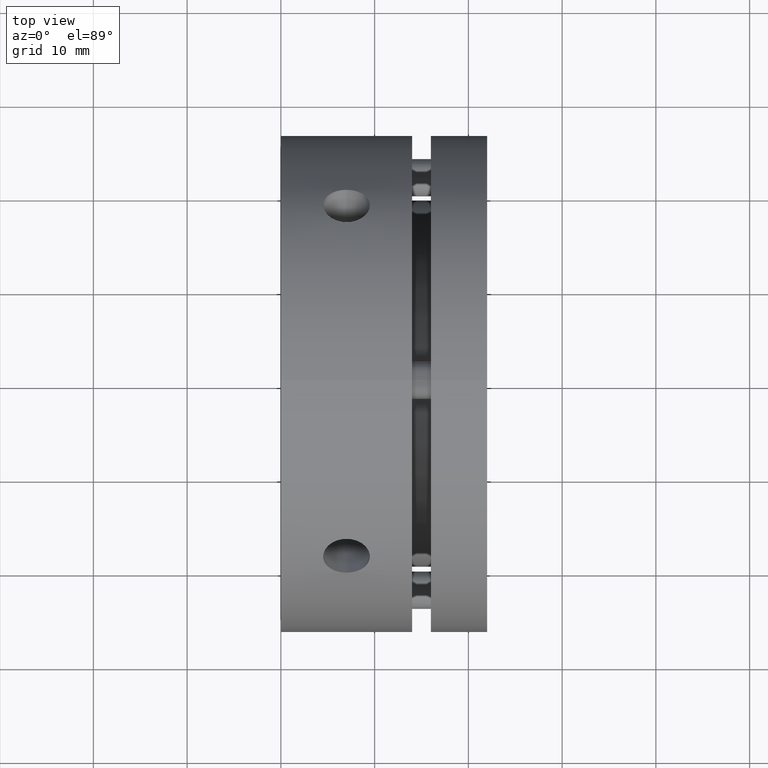
[diagram: clean part render]
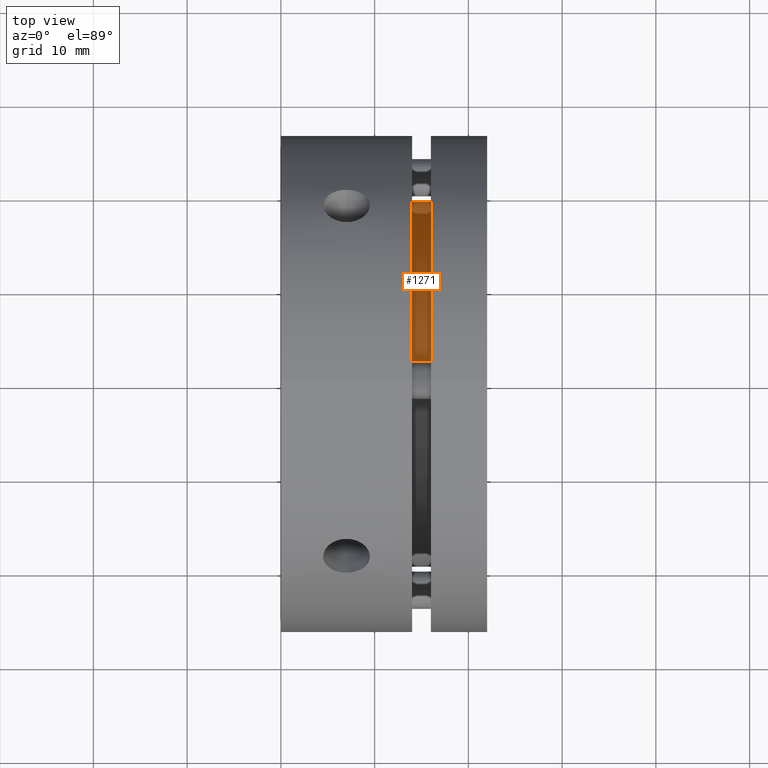
[diagram: same view with one face highlighted and labeled with its STEP entity id]
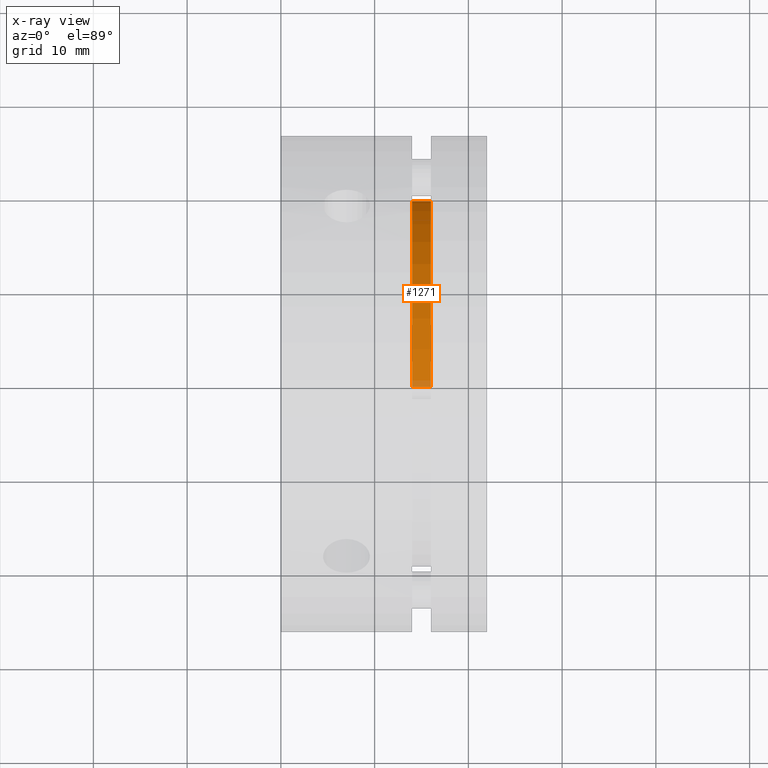
[diagram: x-ray of the same camera — body ghosted, the highlighted face saturated]
A machine part, top view. The second image highlights one B-rep face of the part: STEP entity #1271.
The next image is the same camera in x-ray: the body ghosted, the highlighted face saturated — about 3% of this face is hidden behind the body in this view.
In plain terms, the highlighted cylindrical surface (partial cylindrical patch) has radius 19.5 mm, axis along (-1, 0, 0).
Its self-contained STEP definition (entity closure, byte-faithful):
#491 = DIRECTION ( 'NONE',  ( -1.000000000000000000, 0.0000000000000000000, 0.0000000000000000000 ) ) ;
#495 = DIRECTION ( 'NONE',  ( -1.000000000000000000, 0.0000000000000000000, 0.0000000000000000000 ) ) ;
#496 = CARTESIAN_POINT ( 'NONE',  ( 15.00000000000000000, 0.0000000000000000000, 19.50000000000000000 ) ) ;
#497 = CARTESIAN_POINT ( 'NONE',  ( 15.00000000000000000, 2.388061258337338900E-015, -19.50000000000000000 ) ) ;
#498 = CARTESIAN_POINT ( 'NONE',  ( 15.99999999999999600, 0.0000000000000000000, 0.0000000000000000000 ) ) ;
#499 = DIRECTION ( 'NONE',  ( -1.000000000000000000, 0.0000000000000000000, 0.0000000000000000000 ) ) ;
#500 = DIRECTION ( 'NONE',  ( 0.0000000000000000000, 0.0000000000000000000, 1.000000000000000000 ) ) ;
#502 = CARTESIAN_POINT ( 'NONE',  ( 14.00000000000000000, 0.0000000000000000000, 0.0000000000000000000 ) ) ;
#503 = DIRECTION ( 'NONE',  ( 1.000000000000000000, -0.0000000000000000000, -0.0000000000000000000 ) ) ;
#504 = DIRECTION ( 'NONE',  ( 0.0000000000000000000, 0.0000000000000000000, 1.000000000000000000 ) ) ;
#647 = DIRECTION ( 'NONE',  ( 0.0000000000000000000, 0.0000000000000000000, 1.000000000000000000 ) ) ;
#649 = DIRECTION ( 'NONE',  ( -1.000000000000000000, 0.0000000000000000000, 0.0000000000000000000 ) ) ;
#651 = CARTESIAN_POINT ( 'NONE',  ( 15.00000000000000000, 0.0000000000000000000, 0.0000000000000000000 ) ) ;
#907 = EDGE_CURVE ( 'NONE', #2904, #2918, #1170, .T. ) ;
#908 = EDGE_CURVE ( 'NONE', #2918, #2915, #1166, .T. ) ;
#909 = EDGE_CURVE ( 'NONE', #2915, #2903, #1173, .T. ) ;
#910 = EDGE_CURVE ( 'NONE', #2904, #2903, #1175, .T. ) ;
#957 = ORIENTED_EDGE ( 'NONE', *, *, #907, .T. ) ;
#958 = ORIENTED_EDGE ( 'NONE', *, *, #908, .T. ) ;
#959 = ORIENTED_EDGE ( 'NONE', *, *, #909, .T. ) ;
#960 = ORIENTED_EDGE ( 'NONE', *, *, #910, .F. ) ;
#1166 = LINE ( 'NONE', #497, #1174 ) ;
#1170 = CIRCLE ( 'NONE', #3035, 19.50000000000000000 ) ;
#1173 = CIRCLE ( 'NONE', #3036, 19.50000000000000000 ) ;
#1174 = VECTOR ( 'NONE', #491, 1000.000000000000000 ) ;
#1175 = LINE ( 'NONE', #496, #1177 ) ;
#1177 = VECTOR ( 'NONE', #495, 1000.000000000000000 ) ;
#1271 = ADVANCED_FACE ( 'NONE', ( #1479 ), #1487, .T. ) ;
#1426 = EDGE_LOOP ( 'NONE', ( #957, #958, #959, #960 ) ) ;
#1479 = FACE_OUTER_BOUND ( 'NONE', #1426, .T. ) ;
#1487 = CYLINDRICAL_SURFACE ( 'NONE', #3077, 19.50000000000000000 ) ;
#2071 = CARTESIAN_POINT ( 'NONE',  ( 14.00000000000000000, 0.0000000000000000000, 19.50000000000000000 ) ) ;
#2072 = CARTESIAN_POINT ( 'NONE',  ( 15.99999999999999600, 0.0000000000000000000, 19.50000000000000000 ) ) ;
#2083 = CARTESIAN_POINT ( 'NONE',  ( 14.00000000000000000, 2.388061258337338900E-015, -19.50000000000000000 ) ) ;
#2086 = CARTESIAN_POINT ( 'NONE',  ( 15.99999999999999600, 2.388061258337338900E-015, -19.50000000000000000 ) ) ;
#2903 = VERTEX_POINT ( 'NONE', #2071 ) ;
#2904 = VERTEX_POINT ( 'NONE', #2072 ) ;
#2915 = VERTEX_POINT ( 'NONE', #2083 ) ;
#2918 = VERTEX_POINT ( 'NONE', #2086 ) ;
#3035 = AXIS2_PLACEMENT_3D ( 'NONE', #498, #499, #500 ) ;
#3036 = AXIS2_PLACEMENT_3D ( 'NONE', #502, #503, #504 ) ;
#3077 = AXIS2_PLACEMENT_3D ( 'NONE', #651, #649, #647 ) ;